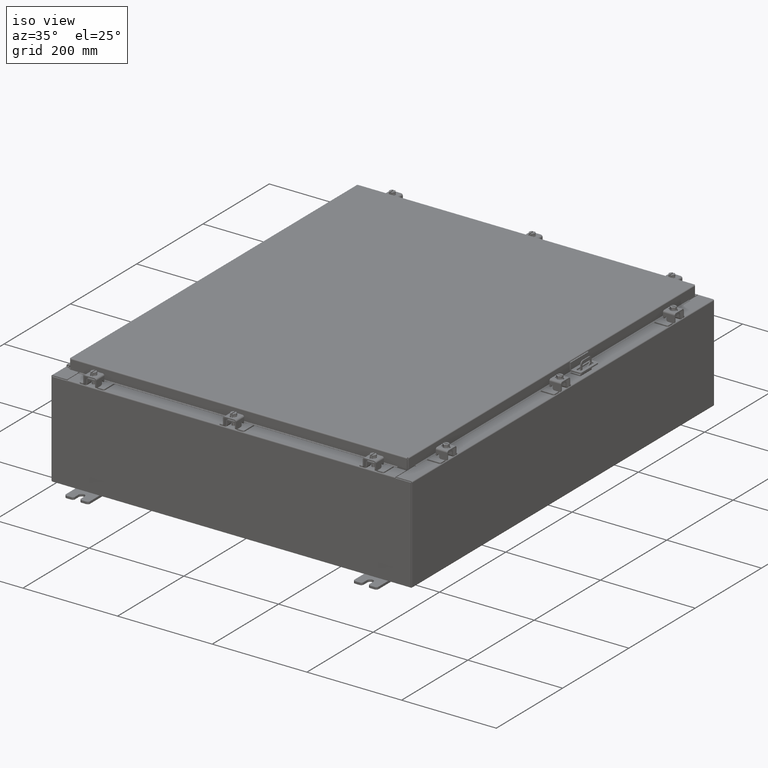
[diagram: clean part render]
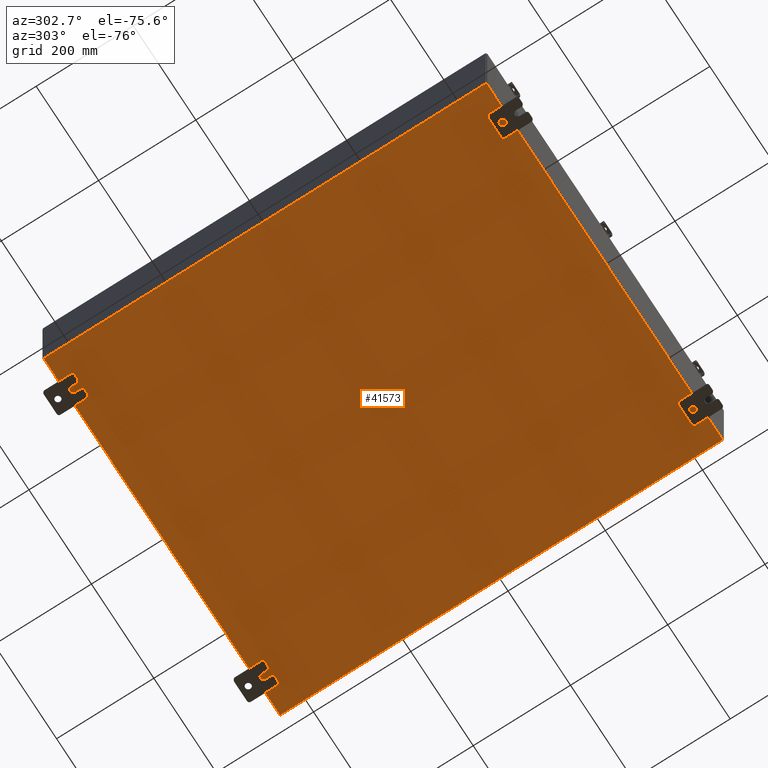
[diagram: tour spotlight — one face highlighted and labeled with its STEP entity id]
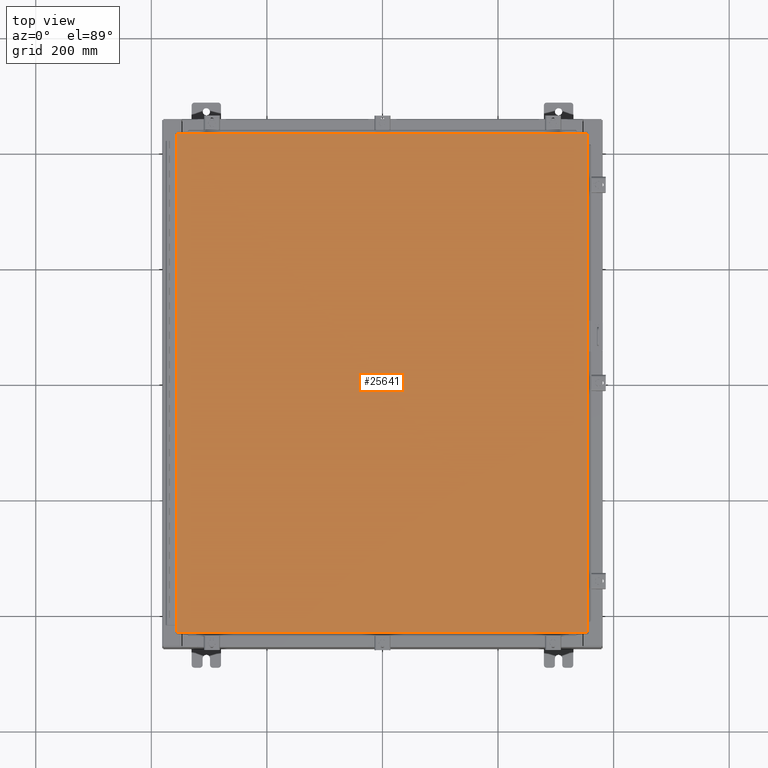
[diagram: tour spotlight — one face highlighted and labeled with its STEP entity id]
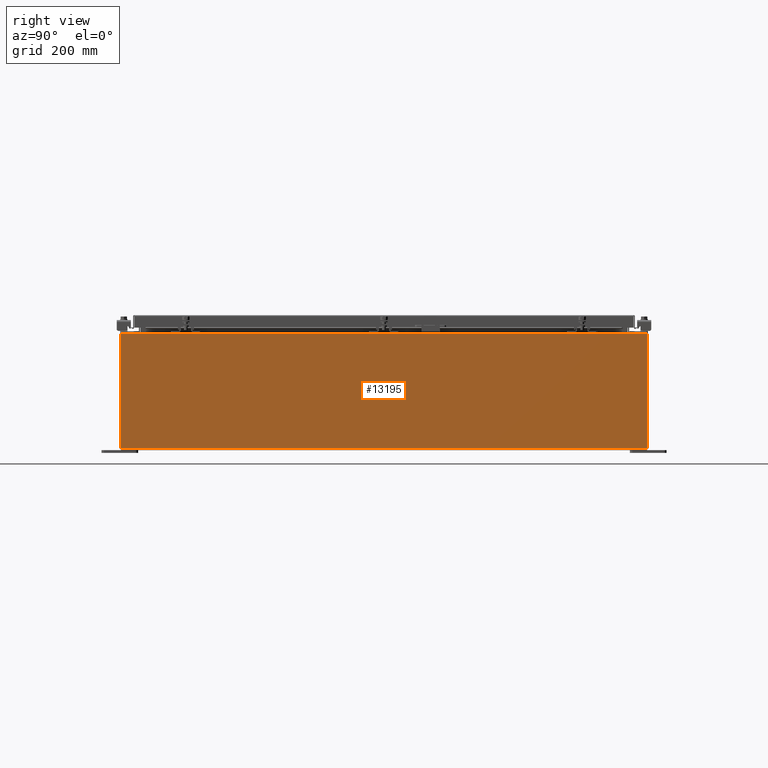
[diagram: tour spotlight — one face highlighted and labeled with its STEP entity id]
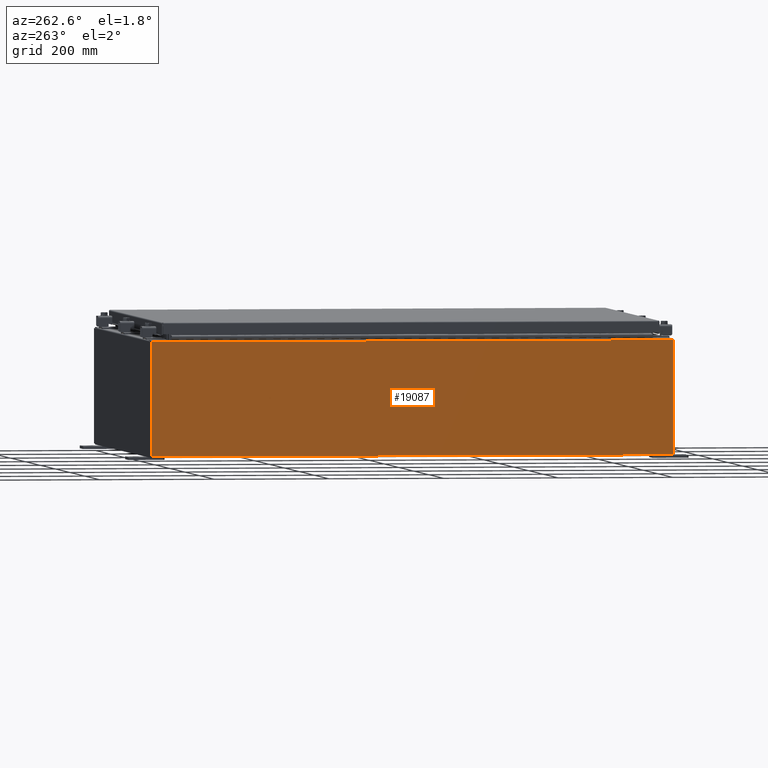
[diagram: tour spotlight — one face highlighted and labeled with its STEP entity id]
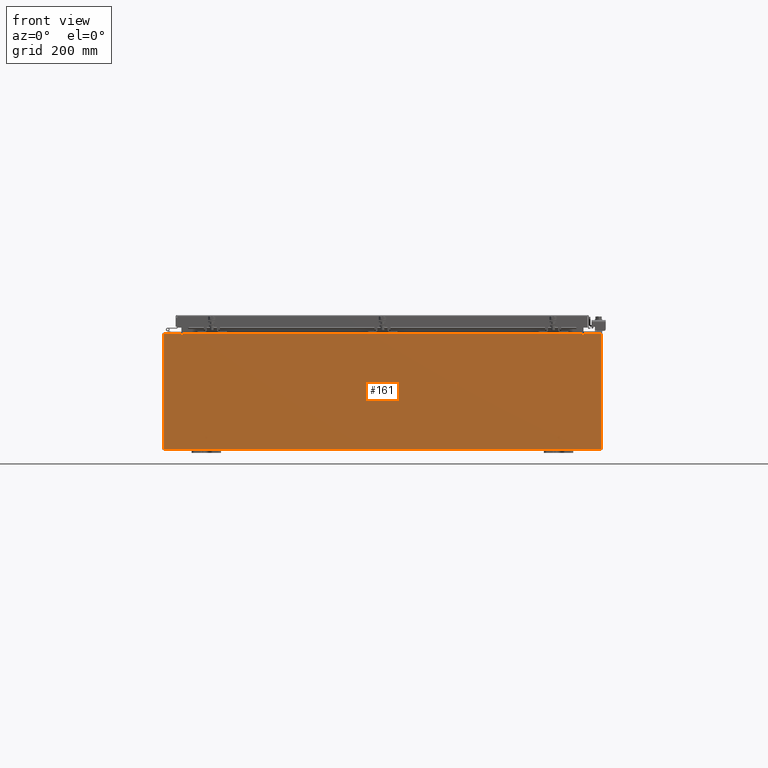
[diagram: tour spotlight — one face highlighted and labeled with its STEP entity id]
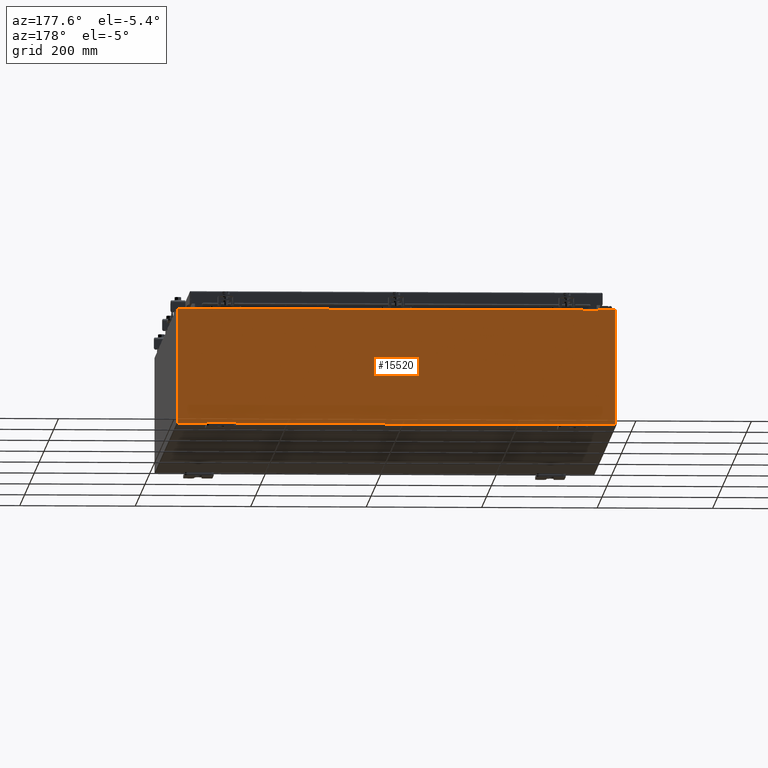
[diagram: tour spotlight — one face highlighted and labeled with its STEP entity id]
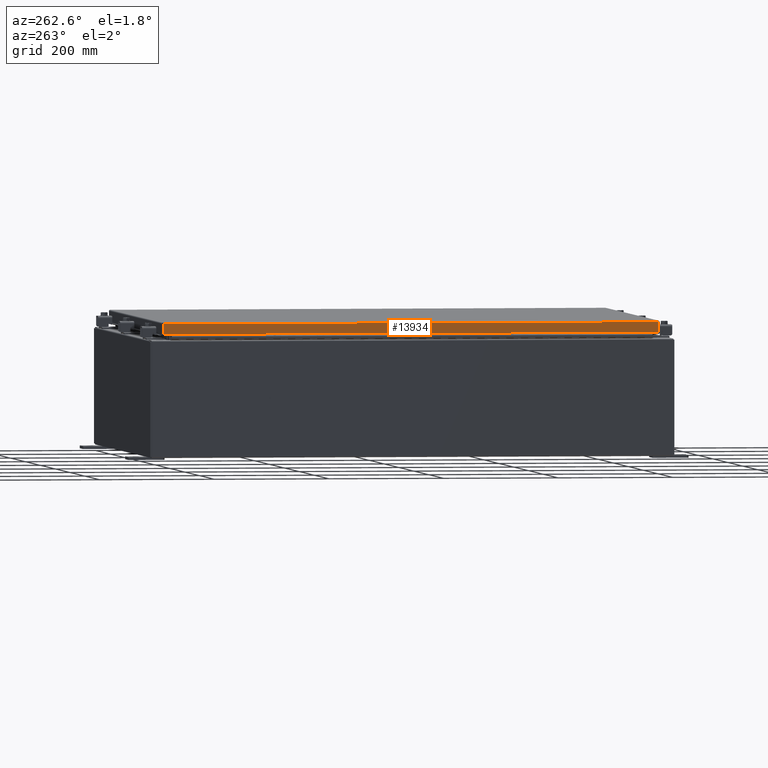
[diagram: tour spotlight — one face highlighted and labeled with its STEP entity id]
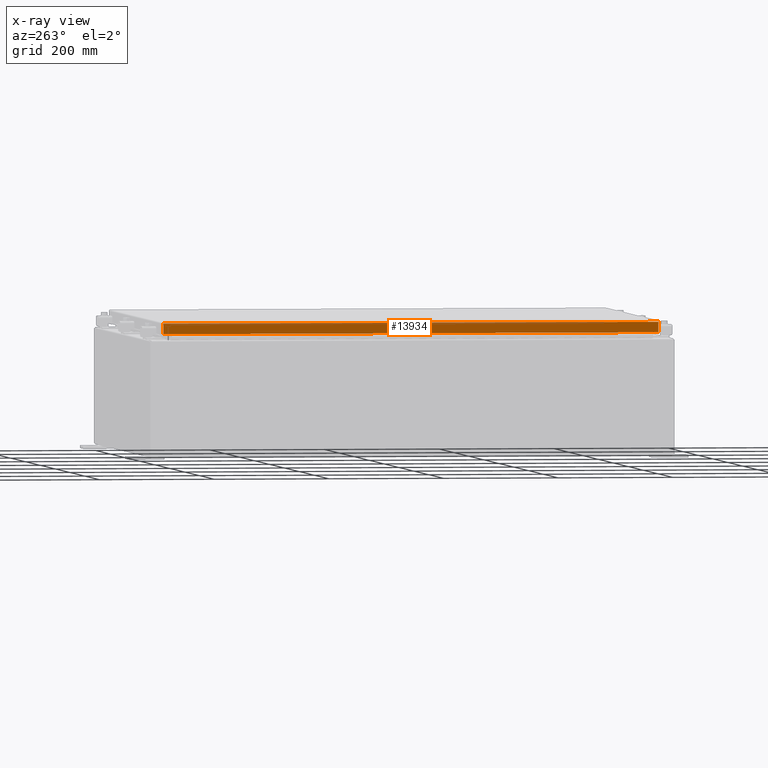
[diagram: x-ray of the same camera — body ghosted, this tour face saturated]
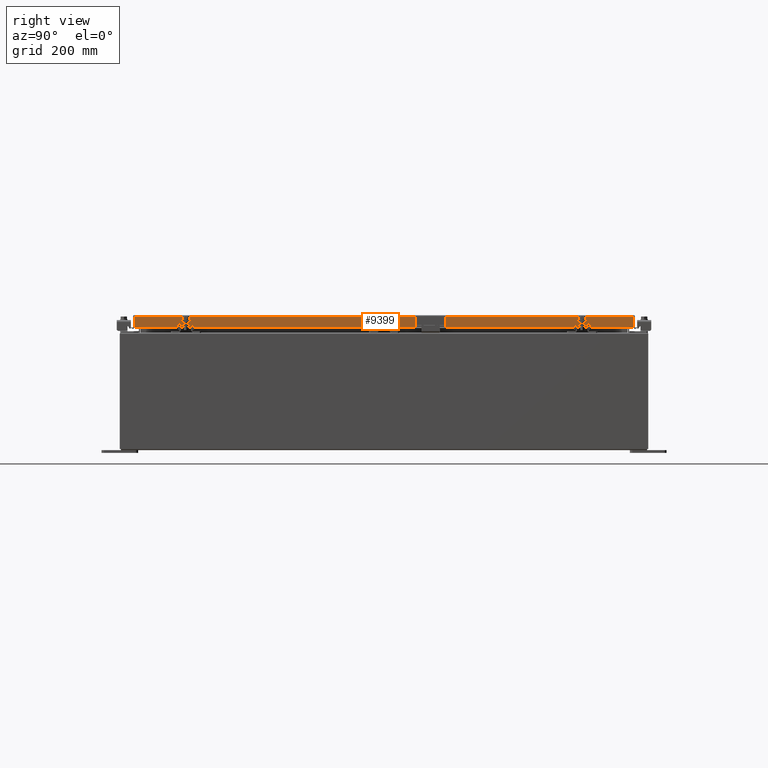
[diagram: tour spotlight — one face highlighted and labeled with its STEP entity id]
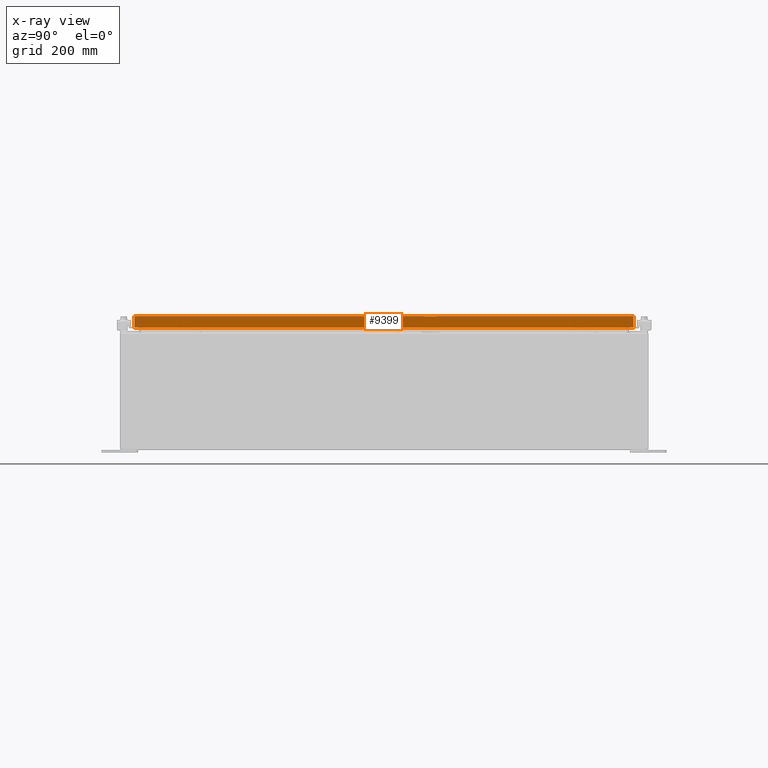
[diagram: x-ray of the same camera — body ghosted, this tour face saturated]
A machine part: a face-by-face anatomy tour. The part has 2482 B-rep faces; the first image is the clean iso view, then the 8 largest visible faces are spotlighted one at a time (largest first), each with its STEP entity span.

Face 1 — auxiliary view, entity #41573. In plain terms, the highlighted planar face has unit normal (0, 0, -1).
Definition (entity closure, byte-faithful):
#1558 = CARTESIAN_POINT ( 'NONE',  ( -15.00000000000000400, 17.92530000000000000, -0.07469999999999998900 ) ) ;
#1946 = VERTEX_POINT ( 'NONE', #27403 ) ;
#3072 = CARTESIAN_POINT ( 'NONE',  ( -14.91230000000000200, 17.92530000000000000, -0.07469999999999998900 ) ) ;
#3519 = ORIENTED_EDGE ( 'NONE', *, *, #12975, .T. ) ;
#4757 = CARTESIAN_POINT ( 'NONE',  ( 14.91229999999999800, 17.92530000000000000, -0.07470000000000251400 ) ) ;
#5370 = VERTEX_POINT ( 'NONE', #8923 ) ;
#5992 = VECTOR ( 'NONE', #33147, 39.37007874015748100 ) ;
#6813 = DIRECTION ( 'NONE',  ( 0.0000000000000000000, 0.0000000000000000000, -1.000000000000000000 ) ) ;
#6951 = ORIENTED_EDGE ( 'NONE', *, *, #41744, .F. ) ;
#7314 = DIRECTION ( 'NONE',  ( -0.0000000000000000000, -1.000000000000000000, 8.208677865577646300E-017 ) ) ;
#8923 = CARTESIAN_POINT ( 'NONE',  ( 14.91229999999999800, -17.92530000000000000, -0.07469999999999998900 ) ) ;
#9377 = ORIENTED_EDGE ( 'NONE', *, *, #19509, .F. ) ;
#9492 = CARTESIAN_POINT ( 'NONE',  ( -14.91230000000000200, -17.92530000000000000, -0.07469999999999996100 ) ) ;
#10076 = PLANE ( 'NONE',  #17456 ) ;
#11734 = DIRECTION ( 'NONE',  ( -1.000000000000000000, -0.0000000000000000000, -0.0000000000000000000 ) ) ;
#12685 = LINE ( 'NONE', #1558, #21281 ) ;
#12975 = EDGE_CURVE ( 'NONE', #1946, #27853, #24037, .T. ) ;
#14136 = CARTESIAN_POINT ( 'NONE',  ( 14.91229999999999800, 17.92530000000000000, -0.07470000000000251400 ) ) ;
#14352 = CARTESIAN_POINT ( 'NONE',  ( -15.00000000000000400, -17.92530000000000000, -0.07469999999999998900 ) ) ;
#17456 = AXIS2_PLACEMENT_3D ( 'NONE', #20315, #6813, #30467 ) ;
#19509 = EDGE_CURVE ( 'NONE', #33013, #27853, #12685, .T. ) ;
#20315 = CARTESIAN_POINT ( 'NONE',  ( 0.0000000000000000000, 0.0000000000000000000, -0.07469999999999998900 ) ) ;
#21281 = VECTOR ( 'NONE', #11734, 39.37007874015748100 ) ;
#24037 = LINE ( 'NONE', #9492, #5992 ) ;
#26003 = VECTOR ( 'NONE', #7314, 39.37007874015748100 ) ;
#27403 = CARTESIAN_POINT ( 'NONE',  ( -14.91230000000000200, -17.92530000000000000, -0.07469999999999996100 ) ) ;
#27853 = VERTEX_POINT ( 'NONE', #3072 ) ;
#27946 = DIRECTION ( 'NONE',  ( 1.000000000000000000, 0.0000000000000000000, 0.0000000000000000000 ) ) ;
#30047 = EDGE_CURVE ( 'NONE', #33013, #5370, #37099, .T. ) ;
#30250 = FACE_OUTER_BOUND ( 'NONE', #36072, .T. ) ;
#30467 = DIRECTION ( 'NONE',  ( -1.000000000000000000, 0.0000000000000000000, -0.0000000000000000000 ) ) ;
#32850 = VECTOR ( 'NONE', #27946, 39.37007874015748100 ) ;
#33013 = VERTEX_POINT ( 'NONE', #4757 ) ;
#33147 = DIRECTION ( 'NONE',  ( -0.0000000000000000000, 1.000000000000000000, -0.0000000000000000000 ) ) ;
#36072 = EDGE_LOOP ( 'NONE', ( #6951, #3519, #9377, #37981 ) ) ;
#37099 = LINE ( 'NONE', #14136, #26003 ) ;
#37981 = ORIENTED_EDGE ( 'NONE', *, *, #30047, .T. ) ;
#41573 = ADVANCED_FACE ( 'NONE', ( #30250 ), #10076, .T. ) ;
#41744 = EDGE_CURVE ( 'NONE', #1946, #5370, #42867, .T. ) ;
#42867 = LINE ( 'NONE', #14352, #32850 ) ;

Face 2 — top view, entity #25641. In plain terms, the highlighted planar face has unit normal (0, 0, -1).
Definition (entity closure, byte-faithful):
#120 = CARTESIAN_POINT ( 'NONE',  ( 13.99029999999999200, -17.00630000000000000, 0.0000000000000000000 ) ) ;
#190 = CARTESIAN_POINT ( 'NONE',  ( 13.99029999999999200, -17.00630000000000000, 0.0000000000000000000 ) ) ;
#953 = EDGE_LOOP ( 'NONE', ( #33686, #8342, #34039, #15385 ) ) ;
#1912 = EDGE_CURVE ( 'NONE', #29605, #11529, #9495, .T. ) ;
#2059 = VECTOR ( 'NONE', #27207, 39.37007874015748100 ) ;
#3304 = DIRECTION ( 'NONE',  ( 0.0000000000000000000, -1.000000000000000000, 0.0000000000000000000 ) ) ;
#8342 = ORIENTED_EDGE ( 'NONE', *, *, #24426, .T. ) ;
#8872 = VERTEX_POINT ( 'NONE', #27887 ) ;
#9338 = FACE_OUTER_BOUND ( 'NONE', #953, .T. ) ;
#9495 = LINE ( 'NONE', #13674, #18539 ) ;
#10206 = EDGE_CURVE ( 'NONE', #15777, #29605, #15939, .T. ) ;
#11529 = VERTEX_POINT ( 'NONE', #120 ) ;
#13361 = PLANE ( 'NONE',  #43499 ) ;
#13674 = CARTESIAN_POINT ( 'NONE',  ( -13.99030000000000700, -17.00630000000000000, 0.0000000000000000000 ) ) ;
#13844 = VECTOR ( 'NONE', #3304, 39.37007874015748100 ) ;
#15385 = ORIENTED_EDGE ( 'NONE', *, *, #10206, .T. ) ;
#15777 = VERTEX_POINT ( 'NONE', #39285 ) ;
#15939 = LINE ( 'NONE', #20185, #13844 ) ;
#15982 = CARTESIAN_POINT ( 'NONE',  ( 0.0000000000000000000, 0.0000000000000000000, 0.0000000000000000000 ) ) ;
#16369 = EDGE_CURVE ( 'NONE', #8872, #15777, #16611, .T. ) ;
#16611 = LINE ( 'NONE', #39233, #42444 ) ;
#17910 = DIRECTION ( 'NONE',  ( -1.000000000000000000, 0.0000000000000000000, -0.0000000000000000000 ) ) ;
#18539 = VECTOR ( 'NONE', #30500, 39.37007874015748100 ) ;
#20094 = LINE ( 'NONE', #190, #2059 ) ;
#20185 = CARTESIAN_POINT ( 'NONE',  ( -13.99030000000000700, 17.00630000000000000, 0.0000000000000000000 ) ) ;
#21145 = CARTESIAN_POINT ( 'NONE',  ( -13.99030000000000700, -17.00630000000000000, 0.0000000000000000000 ) ) ;
#24426 = EDGE_CURVE ( 'NONE', #11529, #8872, #20094, .T. ) ;
#25641 = ADVANCED_FACE ( 'NONE', ( #9338 ), #13361, .F. ) ;
#27207 = DIRECTION ( 'NONE',  ( 0.0000000000000000000, 1.000000000000000000, 0.0000000000000000000 ) ) ;
#27887 = CARTESIAN_POINT ( 'NONE',  ( 13.99029999999999200, 17.00630000000000300, -1.092739197465705300E-015 ) ) ;
#29605 = VERTEX_POINT ( 'NONE', #21145 ) ;
#30500 = DIRECTION ( 'NONE',  ( 1.000000000000000000, -0.0000000000000000000, -0.0000000000000000000 ) ) ;
#33686 = ORIENTED_EDGE ( 'NONE', *, *, #1912, .T. ) ;
#34039 = ORIENTED_EDGE ( 'NONE', *, *, #16369, .T. ) ;
#38094 = DIRECTION ( 'NONE',  ( 0.0000000000000000000, 0.0000000000000000000, -1.000000000000000000 ) ) ;
#39233 = CARTESIAN_POINT ( 'NONE',  ( 13.99029999999999200, 17.00630000000000300, -1.092739197465705300E-015 ) ) ;
#39285 = CARTESIAN_POINT ( 'NONE',  ( -13.99030000000000700, 17.00630000000000000, 0.0000000000000000000 ) ) ;
#42444 = VECTOR ( 'NONE', #42630, 39.37007874015748100 ) ;
#42630 = DIRECTION ( 'NONE',  ( -1.000000000000000000, -0.0000000000000000000, -0.0000000000000000000 ) ) ;
#43499 = AXIS2_PLACEMENT_3D ( 'NONE', #15982, #38094, #17910 ) ;

Face 3 — right view, entity #13195. In plain terms, the highlighted planar face has unit normal (-1, 0, 0).
Definition (entity closure, byte-faithful):
#529 = DIRECTION ( 'NONE',  ( 3.584876173029202900E-015, 0.0000000000000000000, 1.000000000000000000 ) ) ;
#743 = VECTOR ( 'NONE', #26961, 39.37007874015748100 ) ;
#2378 = CARTESIAN_POINT ( 'NONE',  ( 14.99999999999999800, 17.92530000000000000, -5.403936812467120800E-014 ) ) ;
#3004 = ORIENTED_EDGE ( 'NONE', *, *, #31262, .F. ) ;
#5049 = CARTESIAN_POINT ( 'NONE',  ( 14.99999999999999800, -17.92530000000000000, 0.01300000000000021800 ) ) ;
#5897 = VERTEX_POINT ( 'NONE', #5049 ) ;
#6434 = EDGE_LOOP ( 'NONE', ( #31422, #33252, #3004, #22290 ) ) ;
#6480 = VERTEX_POINT ( 'NONE', #31880 ) ;
#10787 = LINE ( 'NONE', #30342, #743 ) ;
#10912 = LINE ( 'NONE', #2378, #19923 ) ;
#11653 = CARTESIAN_POINT ( 'NONE',  ( 14.99999999999999800, -17.92530000000000000, -5.403936812467120800E-014 ) ) ;
#13095 = EDGE_CURVE ( 'NONE', #43460, #6480, #10787, .T. ) ;
#13195 = ADVANCED_FACE ( 'NONE', ( #24531 ), #17386, .F. ) ;
#17386 = PLANE ( 'NONE',  #42886 ) ;
#17445 = CARTESIAN_POINT ( 'NONE',  ( 14.99999999999999800, -17.92530000000000000, 0.01299999999999985200 ) ) ;
#19105 = LINE ( 'NONE', #17445, #20199 ) ;
#19923 = VECTOR ( 'NONE', #22660, 39.37007874015748100 ) ;
#20199 = VECTOR ( 'NONE', #34385, 39.37007874015748100 ) ;
#20790 = DIRECTION ( 'NONE',  ( -1.000000000000000000, 0.0000000000000000000, 3.584876173029202900E-015 ) ) ;
#22290 = ORIENTED_EDGE ( 'NONE', *, *, #34768, .T. ) ;
#22660 = DIRECTION ( 'NONE',  ( 3.584876173029202900E-015, 0.0000000000000000000, 1.000000000000000000 ) ) ;
#23092 = VERTEX_POINT ( 'NONE', #39376 ) ;
#24531 = FACE_OUTER_BOUND ( 'NONE', #6434, .T. ) ;
#25259 = DIRECTION ( 'NONE',  ( -3.584876173029202900E-015, 0.0000000000000000000, -1.000000000000000000 ) ) ;
#26961 = DIRECTION ( 'NONE',  ( -0.0000000000000000000, -1.000000000000000000, -0.0000000000000000000 ) ) ;
#29673 = LINE ( 'NONE', #11653, #38642 ) ;
#30342 = CARTESIAN_POINT ( 'NONE',  ( 15.00000000000002700, 17.92530000000000000, 7.837599999999992100 ) ) ;
#30790 = CARTESIAN_POINT ( 'NONE',  ( 14.99999999999999800, 0.0000000000000000000, -5.403936812467120800E-014 ) ) ;
#31262 = EDGE_CURVE ( 'NONE', #23092, #5897, #19105, .T. ) ;
#31422 = ORIENTED_EDGE ( 'NONE', *, *, #13095, .T. ) ;
#31880 = CARTESIAN_POINT ( 'NONE',  ( 15.00000000000002700, -17.92530000000000000, 7.837599999999998300 ) ) ;
#33252 = ORIENTED_EDGE ( 'NONE', *, *, #41850, .T. ) ;
#34385 = DIRECTION ( 'NONE',  ( 2.185366332686126200E-031, -1.000000000000000000, 6.096072018129156600E-017 ) ) ;
#34768 = EDGE_CURVE ( 'NONE', #23092, #43460, #10912, .T. ) ;
#38642 = VECTOR ( 'NONE', #25259, 39.37007874015748100 ) ;
#39376 = CARTESIAN_POINT ( 'NONE',  ( 14.99999999999999800, 17.92530000000000000, 0.01299999999999766600 ) ) ;
#41850 = EDGE_CURVE ( 'NONE', #6480, #5897, #29673, .T. ) ;
#42886 = AXIS2_PLACEMENT_3D ( 'NONE', #30790, #20790, #529 ) ;
#43460 = VERTEX_POINT ( 'NONE', #43782 ) ;
#43782 = CARTESIAN_POINT ( 'NONE',  ( 15.00000000000002700, 17.92530000000000000, 7.837599999999992100 ) ) ;

Face 4 — auxiliary view, entity #19087. In plain terms, the highlighted planar face has unit normal (1, 0, 0).
Definition (entity closure, byte-faithful):
#2 = CARTESIAN_POINT ( 'NONE',  ( -15.00000000000003200, -17.92530000000000000, 7.837599999999999200 ) ) ;
#3404 = CARTESIAN_POINT ( 'NONE',  ( -15.00000000000000400, -17.92530000000000000, 0.01299999999999985200 ) ) ;
#5690 = DIRECTION ( 'NONE',  ( 3.584876173029202900E-015, 0.0000000000000000000, -1.000000000000000000 ) ) ;
#7058 = EDGE_CURVE ( 'NONE', #10880, #25159, #41527, .T. ) ;
#9209 = CARTESIAN_POINT ( 'NONE',  ( -15.00000000000000400, 17.92530000000000000, -5.403936812467120800E-014 ) ) ;
#10880 = VERTEX_POINT ( 'NONE', #3404 ) ;
#10891 = CARTESIAN_POINT ( 'NONE',  ( -15.00000000000000400, 17.92530000000000000, 0.01299999999999983500 ) ) ;
#13587 = LINE ( 'NONE', #2, #32562 ) ;
#13990 = CARTESIAN_POINT ( 'NONE',  ( -15.00000000000000400, -17.92530000000000000, -5.403936812467120800E-014 ) ) ;
#17413 = DIRECTION ( 'NONE',  ( -3.584876173029202900E-015, 0.0000000000000000000, 1.000000000000000000 ) ) ;
#19087 = ADVANCED_FACE ( 'NONE', ( #35434 ), #32902, .F. ) ;
#19501 = CARTESIAN_POINT ( 'NONE',  ( -15.00000000000000400, 0.0000000000000000000, -5.403936812467120800E-014 ) ) ;
#19611 = ORIENTED_EDGE ( 'NONE', *, *, #25968, .T. ) ;
#19983 = VECTOR ( 'NONE', #17413, 39.37007874015748100 ) ;
#21909 = ORIENTED_EDGE ( 'NONE', *, *, #35883, .T. ) ;
#22912 = DIRECTION ( 'NONE',  ( 3.584876173029202900E-015, 0.0000000000000000000, -1.000000000000000000 ) ) ;
#23639 = DIRECTION ( 'NONE',  ( 0.0000000000000000000, 1.000000000000000000, 0.0000000000000000000 ) ) ;
#25159 = VERTEX_POINT ( 'NONE', #10891 ) ;
#25236 = ORIENTED_EDGE ( 'NONE', *, *, #7058, .F. ) ;
#25968 = EDGE_CURVE ( 'NONE', #30203, #34621, #13587, .T. ) ;
#27126 = AXIS2_PLACEMENT_3D ( 'NONE', #19501, #43076, #22912 ) ;
#29991 = LINE ( 'NONE', #13990, #19983 ) ;
#30203 = VERTEX_POINT ( 'NONE', #41831 ) ;
#30366 = LINE ( 'NONE', #9209, #39308 ) ;
#31973 = CARTESIAN_POINT ( 'NONE',  ( -15.00000000000000400, 17.92530000000000000, 0.01299999999999985200 ) ) ;
#32534 = VECTOR ( 'NONE', #35384, 39.37007874015748100 ) ;
#32562 = VECTOR ( 'NONE', #23639, 39.37007874015748100 ) ;
#32902 = PLANE ( 'NONE',  #27126 ) ;
#34621 = VERTEX_POINT ( 'NONE', #38567 ) ;
#35384 = DIRECTION ( 'NONE',  ( -0.0000000000000000000, 1.000000000000000000, -0.0000000000000000000 ) ) ;
#35434 = FACE_OUTER_BOUND ( 'NONE', #43042, .T. ) ;
#35883 = EDGE_CURVE ( 'NONE', #34621, #25159, #30366, .T. ) ;
#38567 = CARTESIAN_POINT ( 'NONE',  ( -15.00000000000003200, 17.92530000000000000, 7.837599999999999200 ) ) ;
#39308 = VECTOR ( 'NONE', #5690, 39.37007874015748100 ) ;
#41013 = EDGE_CURVE ( 'NONE', #10880, #30203, #29991, .T. ) ;
#41527 = LINE ( 'NONE', #31973, #32534 ) ;
#41831 = CARTESIAN_POINT ( 'NONE',  ( -15.00000000000003200, -17.92530000000000000, 7.837599999999999200 ) ) ;
#43042 = EDGE_LOOP ( 'NONE', ( #19611, #21909, #25236, #43613 ) ) ;
#43076 = DIRECTION ( 'NONE',  ( 1.000000000000000000, 0.0000000000000000000, 3.584876173029202900E-015 ) ) ;
#43613 = ORIENTED_EDGE ( 'NONE', *, *, #41013, .T. ) ;

Face 5 — front view, entity #161. In plain terms, the highlighted planar face has unit normal (0, 1, -0).
Definition (entity closure, byte-faithful):
#72 = CARTESIAN_POINT ( 'NONE',  ( -13.63719999999999600, 0.0000000000000000000, 3.912299999999987200 ) ) ;
#83 = VERTEX_POINT ( 'NONE', #37114 ) ;
#134 = CIRCLE ( 'NONE', #41147, 0.01867499999999949400 ) ;
#161 = ADVANCED_FACE ( 'NONE', ( #5453 ), #364, .F. ) ;
#364 = PLANE ( 'NONE',  #40140 ) ;
#1116 = VERTEX_POINT ( 'NONE', #24591 ) ;
#1216 = EDGE_CURVE ( 'NONE', #19953, #27819, #10129, .T. ) ;
#2661 = CARTESIAN_POINT ( 'NONE',  ( -13.63719999999999600, 0.0000000000000000000, 3.874949999999985900 ) ) ;
#2694 = LINE ( 'NONE', #26972, #18580 ) ;
#3062 = ORIENTED_EDGE ( 'NONE', *, *, #6458, .T. ) ;
#3078 = VECTOR ( 'NONE', #8070, 39.37007874015748100 ) ;
#4675 = CARTESIAN_POINT ( 'NONE',  ( 13.63720000000000400, 0.0000000000000000000, 9.834652777191348400E-015 ) ) ;
#4821 = CARTESIAN_POINT ( 'NONE',  ( 14.92530000000000200, 0.0000000000000000000, 3.925300000000013300 ) ) ;
#5453 = FACE_OUTER_BOUND ( 'NONE', #5654, .T. ) ;
#5606 = VERTEX_POINT ( 'NONE', #27120 ) ;
#5654 = EDGE_LOOP ( 'NONE', ( #12935, #30294, #36282, #3062, #11796, #19101, #33591, #40566, #24246, #20991, #29046, #40306 ) ) ;
#5850 = CARTESIAN_POINT ( 'NONE',  ( 13.67455000000000400, 0.0000000000000000000, 3.925300000000013300 ) ) ;
#5879 = LINE ( 'NONE', #13398, #14888 ) ;
#6179 = VECTOR ( 'NONE', #38228, 39.37007874015748100 ) ;
#6458 = EDGE_CURVE ( 'NONE', #14580, #41020, #11987, .T. ) ;
#7306 = CARTESIAN_POINT ( 'NONE',  ( 13.67455000000000200, 0.0000000000000000000, 3.874950000000012100 ) ) ;
#8070 = DIRECTION ( 'NONE',  ( 9.992007221626408900E-016, -2.013110121372521300E-016, 1.000000000000000000 ) ) ;
#10129 = CIRCLE ( 'NONE', #32223, 0.01867499999999949400 ) ;
#10140 = EDGE_CURVE ( 'NONE', #11164, #20437, #33914, .T. ) ;
#11164 = VERTEX_POINT ( 'NONE', #4821 ) ;
#11198 = VECTOR ( 'NONE', #43442, 39.37007874015748100 ) ;
#11739 = LINE ( 'NONE', #20917, #19714 ) ;
#11796 = ORIENTED_EDGE ( 'NONE', *, *, #40522, .F. ) ;
#11987 = LINE ( 'NONE', #18359, #36843 ) ;
#12606 = CARTESIAN_POINT ( 'NONE',  ( -13.63719999999999600, 0.0000000000000000000, -1.311287036958846300E-014 ) ) ;
#12935 = ORIENTED_EDGE ( 'NONE', *, *, #38366, .F. ) ;
#13398 = CARTESIAN_POINT ( 'NONE',  ( -13.67454999999999500, 0.0000000000000000000, -1.639108796198557900E-014 ) ) ;
#13936 = DIRECTION ( 'NONE',  ( -3.225867722578236700E-016, -1.000000000000000000, -2.013110121372518100E-016 ) ) ;
#14349 = VECTOR ( 'NONE', #42978, 39.37007874015748100 ) ;
#14580 = VERTEX_POINT ( 'NONE', #72 ) ;
#14639 = CARTESIAN_POINT ( 'NONE',  ( -13.65587499999999600, 0.0000000000000000000, 3.874949999999985900 ) ) ;
#14800 = CARTESIAN_POINT ( 'NONE',  ( 13.65587500000000200, 0.0000000000000000000, 3.874950000000012100 ) ) ;
#14888 = VECTOR ( 'NONE', #16839, 39.37007874015748100 ) ;
#16839 = DIRECTION ( 'NONE',  ( 9.992007221626408900E-016, -2.013110121372521300E-016, 1.000000000000000000 ) ) ;
#17508 = DIRECTION ( 'NONE',  ( 9.992007221626408900E-016, -2.013110121372521300E-016, 1.000000000000000000 ) ) ;
#18058 = DIRECTION ( 'NONE',  ( 0.0000000000000000000, 2.013110121372521000E-016, -1.000000000000000000 ) ) ;
#18161 = EDGE_CURVE ( 'NONE', #5606, #83, #11739, .T. ) ;
#18237 = DIRECTION ( 'NONE',  ( 0.0000000000000000000, 2.013110121372521000E-016, -1.000000000000000000 ) ) ;
#18359 = CARTESIAN_POINT ( 'NONE',  ( -13.63719999999999800, 0.0000000000000000000, 3.912299999999987200 ) ) ;
#18580 = VECTOR ( 'NONE', #30354, 39.37007874015748100 ) ;
#19101 = ORIENTED_EDGE ( 'NONE', *, *, #1216, .F. ) ;
#19287 = DIRECTION ( 'NONE',  ( -9.992007221626408900E-016, 2.013110121372521300E-016, -1.000000000000000000 ) ) ;
#19408 = CARTESIAN_POINT ( 'NONE',  ( -14.92529999999999800, 0.0000000000000000000, 3.925299999999984900 ) ) ;
#19714 = VECTOR ( 'NONE', #17508, 39.37007874015748100 ) ;
#19841 = EDGE_CURVE ( 'NONE', #83, #1116, #2694, .T. ) ;
#19875 = CARTESIAN_POINT ( 'NONE',  ( 14.92530000000000200, 0.0000000000000000000, 3.925300000000013300 ) ) ;
#19953 = VERTEX_POINT ( 'NONE', #7306 ) ;
#20437 = VERTEX_POINT ( 'NONE', #29315 ) ;
#20917 = CARTESIAN_POINT ( 'NONE',  ( -14.92529999999999800, 0.0000000000000000000, 3.925299999999984900 ) ) ;
#20991 = ORIENTED_EDGE ( 'NONE', *, *, #25708, .T. ) ;
#22893 = CARTESIAN_POINT ( 'NONE',  ( 13.63720000000000400, 0.0000000000000000000, 3.874950000000012100 ) ) ;
#23694 = VECTOR ( 'NONE', #19287, 39.37007874015748100 ) ;
#24246 = ORIENTED_EDGE ( 'NONE', *, *, #10140, .T. ) ;
#24591 = CARTESIAN_POINT ( 'NONE',  ( -13.67454999999999500, 0.0000000000000000000, 3.925299999999987100 ) ) ;
#24822 = CARTESIAN_POINT ( 'NONE',  ( -14.92529999999999800, 0.0000000000000000000, -3.925300000000016000 ) ) ;
#24870 = VERTEX_POINT ( 'NONE', #5850 ) ;
#25466 = VECTOR ( 'NONE', #30080, 39.37007874015748100 ) ;
#25477 = EDGE_CURVE ( 'NONE', #14580, #27147, #25778, .T. ) ;
#25708 = EDGE_CURVE ( 'NONE', #20437, #5606, #33132, .T. ) ;
#25778 = LINE ( 'NONE', #12606, #23694 ) ;
#26683 = CARTESIAN_POINT ( 'NONE',  ( 13.67454999999983300, 0.0000000000000000000, -5.802445138542894800E-013 ) ) ;
#26972 = CARTESIAN_POINT ( 'NONE',  ( -14.92529999999999800, 0.0000000000000000000, 3.925299999999984900 ) ) ;
#27120 = CARTESIAN_POINT ( 'NONE',  ( -14.92529999999999800, 0.0000000000000000000, -3.925300000000016000 ) ) ;
#27147 = VERTEX_POINT ( 'NONE', #2661 ) ;
#27819 = VERTEX_POINT ( 'NONE', #22893 ) ;
#29046 = ORIENTED_EDGE ( 'NONE', *, *, #18161, .T. ) ;
#29315 = CARTESIAN_POINT ( 'NONE',  ( 14.92530000000000200, 0.0000000000000000000, -3.925299999999983600 ) ) ;
#29860 = EDGE_CURVE ( 'NONE', #24870, #19953, #43417, .T. ) ;
#30041 = LINE ( 'NONE', #4675, #3078 ) ;
#30080 = DIRECTION ( 'NONE',  ( -4.440492852616269000E-014, 2.013110121372381000E-016, -1.000000000000000000 ) ) ;
#30294 = ORIENTED_EDGE ( 'NONE', *, *, #30817, .F. ) ;
#30354 = DIRECTION ( 'NONE',  ( 1.000000000000000000, 3.225867722578232700E-016, 9.992007221626408900E-016 ) ) ;
#30402 = EDGE_CURVE ( 'NONE', #24870, #11164, #40221, .T. ) ;
#30768 = CARTESIAN_POINT ( 'NONE',  ( 0.0000000000000000000, 0.0000000000000000000, 0.0000000000000000000 ) ) ;
#30817 = EDGE_CURVE ( 'NONE', #27147, #35059, #134, .T. ) ;
#32223 = AXIS2_PLACEMENT_3D ( 'NONE', #14800, #38425, #18237 ) ;
#33132 = LINE ( 'NONE', #24822, #6179 ) ;
#33591 = ORIENTED_EDGE ( 'NONE', *, *, #29860, .F. ) ;
#33914 = LINE ( 'NONE', #19875, #11198 ) ;
#35059 = VERTEX_POINT ( 'NONE', #41075 ) ;
#36282 = ORIENTED_EDGE ( 'NONE', *, *, #25477, .F. ) ;
#36843 = VECTOR ( 'NONE', #38536, 39.37007874015748100 ) ;
#37114 = CARTESIAN_POINT ( 'NONE',  ( -14.92529999999999800, 0.0000000000000000000, 3.925299999999984900 ) ) ;
#37560 = DIRECTION ( 'NONE',  ( -9.992007221626408900E-016, 2.013110121372521300E-016, -1.000000000000000000 ) ) ;
#38228 = DIRECTION ( 'NONE',  ( -1.000000000000000000, -3.225867722578232700E-016, -9.992007221626408900E-016 ) ) ;
#38255 = DIRECTION ( 'NONE',  ( 3.225867722578232700E-016, 1.000000000000000000, -2.013110121372520500E-016 ) ) ;
#38366 = EDGE_CURVE ( 'NONE', #35059, #1116, #5879, .T. ) ;
#38425 = DIRECTION ( 'NONE',  ( 3.225867722578232700E-016, 1.000000000000000000, -2.013110121372520500E-016 ) ) ;
#38536 = DIRECTION ( 'NONE',  ( 1.000000000000000000, 3.225867722578232700E-016, 9.992007221626408900E-016 ) ) ;
#40140 = AXIS2_PLACEMENT_3D ( 'NONE', #30768, #13936, #37560 ) ;
#40221 = LINE ( 'NONE', #19408, #14349 ) ;
#40306 = ORIENTED_EDGE ( 'NONE', *, *, #19841, .T. ) ;
#40522 = EDGE_CURVE ( 'NONE', #27819, #41020, #30041, .T. ) ;
#40566 = ORIENTED_EDGE ( 'NONE', *, *, #30402, .T. ) ;
#40989 = CARTESIAN_POINT ( 'NONE',  ( 13.63720000000000400, 0.0000000000000000000, 3.912300000000013400 ) ) ;
#41020 = VERTEX_POINT ( 'NONE', #40989 ) ;
#41075 = CARTESIAN_POINT ( 'NONE',  ( -13.67454999999999500, 0.0000000000000000000, 3.874949999999985900 ) ) ;
#41147 = AXIS2_PLACEMENT_3D ( 'NONE', #14639, #38255, #18058 ) ;
#42978 = DIRECTION ( 'NONE',  ( 1.000000000000000000, 3.225867722578232700E-016, 9.992007221626408900E-016 ) ) ;
#43417 = LINE ( 'NONE', #26683, #25466 ) ;
#43442 = DIRECTION ( 'NONE',  ( -9.992007221626408900E-016, 2.013110121372521300E-016, -1.000000000000000000 ) ) ;

Face 6 — auxiliary view, entity #15520. In plain terms, the highlighted planar face has unit normal (0, -1, 0).
Definition (entity closure, byte-faithful):
#319 = DIRECTION ( 'NONE',  ( -0.0000000000000000000, -0.0000000000000000000, 1.000000000000000000 ) ) ;
#567 = EDGE_CURVE ( 'NONE', #2483, #7134, #17642, .T. ) ;
#1319 = LINE ( 'NONE', #7702, #36170 ) ;
#1586 = LINE ( 'NONE', #39191, #10607 ) ;
#1852 = DIRECTION ( 'NONE',  ( 0.0000000000000000000, -1.000000000000000000, 0.0000000000000000000 ) ) ;
#2014 = ORIENTED_EDGE ( 'NONE', *, *, #15004, .T. ) ;
#2380 = CARTESIAN_POINT ( 'NONE',  ( -13.67454999999999500, 0.0000000000000000000, 3.874949999999999700 ) ) ;
#2483 = VERTEX_POINT ( 'NONE', #3120 ) ;
#2647 = LINE ( 'NONE', #10265, #36463 ) ;
#2660 = DIRECTION ( 'NONE',  ( 0.0000000000000000000, 0.0000000000000000000, -1.000000000000000000 ) ) ;
#3120 = CARTESIAN_POINT ( 'NONE',  ( 13.63720000000000400, 0.0000000000000000000, 3.874949999999999700 ) ) ;
#4784 = VECTOR ( 'NONE', #22540, 39.37007874015748100 ) ;
#5029 = LINE ( 'NONE', #23952, #21997 ) ;
#5090 = ORIENTED_EDGE ( 'NONE', *, *, #20386, .F. ) ;
#5227 = CARTESIAN_POINT ( 'NONE',  ( 13.63720000000000400, 0.0000000000000000000, 3.912299999999999700 ) ) ;
#5369 = VECTOR ( 'NONE', #20628, 39.37007874015748100 ) ;
#5420 = DIRECTION ( 'NONE',  ( -4.340572780400004900E-014, 0.0000000000000000000, -1.000000000000000000 ) ) ;
#5816 = CARTESIAN_POINT ( 'NONE',  ( -13.67454999999999500, 0.0000000000000000000, 3.925299999999999600 ) ) ;
#5838 = LINE ( 'NONE', #25769, #4784 ) ;
#5991 = CARTESIAN_POINT ( 'NONE',  ( 13.65587500000000200, 0.0000000000000000000, 3.874949999999999700 ) ) ;
#6006 = VERTEX_POINT ( 'NONE', #19264 ) ;
#6206 = ORIENTED_EDGE ( 'NONE', *, *, #12349, .T. ) ;
#7071 = LINE ( 'NONE', #26181, #32950 ) ;
#7134 = VERTEX_POINT ( 'NONE', #5227 ) ;
#7278 = VERTEX_POINT ( 'NONE', #5816 ) ;
#7366 = CARTESIAN_POINT ( 'NONE',  ( -13.63719999999999600, 0.0000000000000000000, 3.874949999999999700 ) ) ;
#7702 = CARTESIAN_POINT ( 'NONE',  ( -14.92529999999999800, 0.0000000000000000000, 3.925299999999999600 ) ) ;
#8051 = EDGE_CURVE ( 'NONE', #15188, #6006, #7071, .T. ) ;
#9200 = ORIENTED_EDGE ( 'NONE', *, *, #30661, .F. ) ;
#9395 = DIRECTION ( 'NONE',  ( 0.0000000000000000000, 0.0000000000000000000, -1.000000000000000000 ) ) ;
#9521 = ORIENTED_EDGE ( 'NONE', *, *, #29234, .F. ) ;
#9779 = CIRCLE ( 'NONE', #36802, 0.01867499999999949400 ) ;
#10119 = EDGE_LOOP ( 'NONE', ( #9200, #34472, #5090, #2014, #22705, #31804, #9521, #29791, #42108, #25655, #16046, #6206 ) ) ;
#10265 = CARTESIAN_POINT ( 'NONE',  ( -14.92529999999999800, 0.0000000000000000000, -3.925299999999999600 ) ) ;
#10607 = VECTOR ( 'NONE', #19014, 39.37007874015748100 ) ;
#10993 = VERTEX_POINT ( 'NONE', #7366 ) ;
#11761 = VECTOR ( 'NONE', #5420, 39.37007874015748100 ) ;
#12349 = EDGE_CURVE ( 'NONE', #15143, #7278, #1319, .T. ) ;
#15004 = EDGE_CURVE ( 'NONE', #24744, #7134, #30455, .T. ) ;
#15143 = VERTEX_POINT ( 'NONE', #26737 ) ;
#15188 = VERTEX_POINT ( 'NONE', #16879 ) ;
#15229 = EDGE_CURVE ( 'NONE', #26729, #15143, #5029, .T. ) ;
#15520 = ADVANCED_FACE ( 'NONE', ( #29331 ), #38920, .F. ) ;
#16046 = ORIENTED_EDGE ( 'NONE', *, *, #15229, .T. ) ;
#16439 = AXIS2_PLACEMENT_3D ( 'NONE', #5991, #29633, #9395 ) ;
#16879 = CARTESIAN_POINT ( 'NONE',  ( 14.92530000000000200, 0.0000000000000000000, 3.925299999999999600 ) ) ;
#16991 = CARTESIAN_POINT ( 'NONE',  ( -13.65587499999999600, 0.0000000000000000000, 3.874949999999999700 ) ) ;
#17210 = CARTESIAN_POINT ( 'NONE',  ( -13.67454999999999500, 0.0000000000000000000, 0.0000000000000000000 ) ) ;
#17642 = LINE ( 'NONE', #32910, #43465 ) ;
#18838 = VERTEX_POINT ( 'NONE', #34289 ) ;
#19014 = DIRECTION ( 'NONE',  ( 0.0000000000000000000, 0.0000000000000000000, -1.000000000000000000 ) ) ;
#19264 = CARTESIAN_POINT ( 'NONE',  ( 14.92530000000000200, 0.0000000000000000000, -3.925299999999999600 ) ) ;
#19368 = DIRECTION ( 'NONE',  ( 1.000000000000000000, 0.0000000000000000000, 0.0000000000000000000 ) ) ;
#20386 = EDGE_CURVE ( 'NONE', #24744, #10993, #1586, .T. ) ;
#20395 = DIRECTION ( 'NONE',  ( 0.0000000000000000000, 0.0000000000000000000, -1.000000000000000000 ) ) ;
#20628 = DIRECTION ( 'NONE',  ( 0.0000000000000000000, 0.0000000000000000000, 1.000000000000000000 ) ) ;
#20833 = LINE ( 'NONE', #25683, #11761 ) ;
#21087 = VERTEX_POINT ( 'NONE', #2380 ) ;
#21997 = VECTOR ( 'NONE', #319, 39.37007874015748100 ) ;
#22540 = DIRECTION ( 'NONE',  ( 1.000000000000000000, 0.0000000000000000000, 0.0000000000000000000 ) ) ;
#22705 = ORIENTED_EDGE ( 'NONE', *, *, #567, .F. ) ;
#23952 = CARTESIAN_POINT ( 'NONE',  ( -14.92529999999999800, 0.0000000000000000000, 3.925299999999999600 ) ) ;
#24744 = VERTEX_POINT ( 'NONE', #42321 ) ;
#25498 = DIRECTION ( 'NONE',  ( 0.0000000000000000000, -0.0000000000000000000, -1.000000000000000000 ) ) ;
#25655 = ORIENTED_EDGE ( 'NONE', *, *, #43484, .T. ) ;
#25683 = CARTESIAN_POINT ( 'NONE',  ( 13.67454999999983300, 0.0000000000000000000, -5.933573842238779900E-013 ) ) ;
#25769 = CARTESIAN_POINT ( 'NONE',  ( -14.92529999999999800, 0.0000000000000000000, 3.925299999999999600 ) ) ;
#26181 = CARTESIAN_POINT ( 'NONE',  ( 14.92530000000000200, 0.0000000000000000000, 3.925299999999999600 ) ) ;
#26298 = DIRECTION ( 'NONE',  ( 0.0000000000000000000, 0.0000000000000000000, 1.000000000000000000 ) ) ;
#26729 = VERTEX_POINT ( 'NONE', #37581 ) ;
#26737 = CARTESIAN_POINT ( 'NONE',  ( -14.92529999999999800, 0.0000000000000000000, 3.925299999999999600 ) ) ;
#27783 = EDGE_CURVE ( 'NONE', #18838, #2483, #43496, .T. ) ;
#27912 = EDGE_CURVE ( 'NONE', #10993, #21087, #9779, .T. ) ;
#27960 = DIRECTION ( 'NONE',  ( 1.000000000000000000, 0.0000000000000000000, 0.0000000000000000000 ) ) ;
#28941 = VERTEX_POINT ( 'NONE', #34298 ) ;
#29234 = EDGE_CURVE ( 'NONE', #28941, #18838, #20833, .T. ) ;
#29331 = FACE_OUTER_BOUND ( 'NONE', #10119, .T. ) ;
#29633 = DIRECTION ( 'NONE',  ( -0.0000000000000000000, 1.000000000000000000, -0.0000000000000000000 ) ) ;
#29791 = ORIENTED_EDGE ( 'NONE', *, *, #38795, .T. ) ;
#30455 = LINE ( 'NONE', #39566, #31502 ) ;
#30661 = EDGE_CURVE ( 'NONE', #21087, #7278, #32321, .T. ) ;
#31502 = VECTOR ( 'NONE', #19368, 39.37007874015748100 ) ;
#31804 = ORIENTED_EDGE ( 'NONE', *, *, #27783, .F. ) ;
#32321 = LINE ( 'NONE', #17210, #5369 ) ;
#32910 = CARTESIAN_POINT ( 'NONE',  ( 13.63720000000000400, 0.0000000000000000000, 0.0000000000000000000 ) ) ;
#32950 = VECTOR ( 'NONE', #2660, 39.37007874015748100 ) ;
#33894 = DIRECTION ( 'NONE',  ( -1.000000000000000000, -0.0000000000000000000, -0.0000000000000000000 ) ) ;
#34289 = CARTESIAN_POINT ( 'NONE',  ( 13.67455000000000200, 0.0000000000000000000, 3.874949999999999700 ) ) ;
#34298 = CARTESIAN_POINT ( 'NONE',  ( 13.67455000000000400, 0.0000000000000000000, 3.925299999999999600 ) ) ;
#34472 = ORIENTED_EDGE ( 'NONE', *, *, #27912, .F. ) ;
#36170 = VECTOR ( 'NONE', #27960, 39.37007874015748100 ) ;
#36463 = VECTOR ( 'NONE', #33894, 39.37007874015748100 ) ;
#36802 = AXIS2_PLACEMENT_3D ( 'NONE', #16991, #40581, #20395 ) ;
#37581 = CARTESIAN_POINT ( 'NONE',  ( -14.92529999999999800, 0.0000000000000000000, -3.925299999999999600 ) ) ;
#38795 = EDGE_CURVE ( 'NONE', #28941, #15188, #5838, .T. ) ;
#38920 = PLANE ( 'NONE',  #39870 ) ;
#39191 = CARTESIAN_POINT ( 'NONE',  ( -13.63719999999999600, 0.0000000000000000000, 0.0000000000000000000 ) ) ;
#39566 = CARTESIAN_POINT ( 'NONE',  ( -13.63719999999999800, 0.0000000000000000000, 3.912299999999999700 ) ) ;
#39870 = AXIS2_PLACEMENT_3D ( 'NONE', #42297, #1852, #25498 ) ;
#40581 = DIRECTION ( 'NONE',  ( -0.0000000000000000000, 1.000000000000000000, -0.0000000000000000000 ) ) ;
#42108 = ORIENTED_EDGE ( 'NONE', *, *, #8051, .T. ) ;
#42297 = CARTESIAN_POINT ( 'NONE',  ( 0.0000000000000000000, 0.0000000000000000000, 0.0000000000000000000 ) ) ;
#42321 = CARTESIAN_POINT ( 'NONE',  ( -13.63719999999999600, 0.0000000000000000000, 3.912299999999999700 ) ) ;
#43465 = VECTOR ( 'NONE', #26298, 39.37007874015748100 ) ;
#43484 = EDGE_CURVE ( 'NONE', #6006, #26729, #2647, .T. ) ;
#43496 = CIRCLE ( 'NONE', #16439, 0.01867499999999949400 ) ;

Face 7 — auxiliary view, entity #13934. An x-ray twin of the same camera follows (body ghosted, this face saturated) — the face is partly hidden behind the body. In plain terms, the highlighted planar face has unit normal (1, 0, -0).
Definition (entity closure, byte-faithful):
#1411 = LINE ( 'NONE', #40664, #19394 ) ;
#2953 = EDGE_CURVE ( 'NONE', #7629, #15565, #16331, .T. ) ;
#5296 = VECTOR ( 'NONE', #41543, 39.37007874015748100 ) ;
#5406 = CARTESIAN_POINT ( 'NONE',  ( -14.07800000000000700, 17.00515786437627200, 1.617254012249243900E-013 ) ) ;
#6588 = EDGE_CURVE ( 'NONE', #9608, #39930, #34732, .T. ) ;
#6693 = VECTOR ( 'NONE', #19065, 39.37007874015748100 ) ;
#7629 = VERTEX_POINT ( 'NONE', #13675 ) ;
#7667 = DIRECTION ( 'NONE',  ( -3.034122441942816500E-015, 0.0000000000000000000, -1.000000000000000000 ) ) ;
#8149 = CARTESIAN_POINT ( 'NONE',  ( -14.07800000000000700, -17.00515786437626900, -0.08770000000000026400 ) ) ;
#8828 = EDGE_LOOP ( 'NONE', ( #24821, #10280, #42070, #36470 ) ) ;
#9608 = VERTEX_POINT ( 'NONE', #8149 ) ;
#10280 = ORIENTED_EDGE ( 'NONE', *, *, #2953, .T. ) ;
#11280 = CARTESIAN_POINT ( 'NONE',  ( -14.07800000000000800, -17.09400000000000100, -0.7949999999999996000 ) ) ;
#13656 = DIRECTION ( 'NONE',  ( 3.757920914826097400E-031, -1.000000000000000000, -1.107764513432648300E-045 ) ) ;
#13675 = CARTESIAN_POINT ( 'NONE',  ( -14.07800000000000700, 17.00515786437627200, -0.08770000000000026400 ) ) ;
#13934 = ADVANCED_FACE ( 'NONE', ( #40360 ), #41330, .F. ) ;
#14607 = EDGE_CURVE ( 'NONE', #7629, #9608, #1411, .T. ) ;
#15565 = VERTEX_POINT ( 'NONE', #32561 ) ;
#16331 = LINE ( 'NONE', #5406, #31127 ) ;
#17759 = CARTESIAN_POINT ( 'NONE',  ( -14.07800000000000700, 0.0000000000000000000, 4.261682870116250900E-014 ) ) ;
#19065 = DIRECTION ( 'NONE',  ( -3.034122441942816500E-015, 6.982962677686265900E-015, -1.000000000000000000 ) ) ;
#19394 = VECTOR ( 'NONE', #13656, 39.37007874015748100 ) ;
#22580 = EDGE_CURVE ( 'NONE', #39930, #15565, #24394, .T. ) ;
#24394 = LINE ( 'NONE', #11280, #5296 ) ;
#24821 = ORIENTED_EDGE ( 'NONE', *, *, #14607, .F. ) ;
#26838 = AXIS2_PLACEMENT_3D ( 'NONE', #17759, #27922, #7667 ) ;
#27922 = DIRECTION ( 'NONE',  ( 1.000000000000000000, 3.757920914826096500E-031, -3.034122441942816500E-015 ) ) ;
#29060 = DIRECTION ( 'NONE',  ( -3.034122441942816500E-015, 6.982962677686265900E-015, -1.000000000000000000 ) ) ;
#31127 = VECTOR ( 'NONE', #29060, 39.37007874015748100 ) ;
#32459 = CARTESIAN_POINT ( 'NONE',  ( -14.07800000000000700, -17.00515786437626900, -0.07470000000000015500 ) ) ;
#32561 = CARTESIAN_POINT ( 'NONE',  ( -14.07800000000000800, 17.00515786437627600, -0.7949999999999951500 ) ) ;
#34732 = LINE ( 'NONE', #32459, #6693 ) ;
#34866 = CARTESIAN_POINT ( 'NONE',  ( -14.07800000000000800, -17.00515786437626500, -0.7949999999999996000 ) ) ;
#36470 = ORIENTED_EDGE ( 'NONE', *, *, #6588, .F. ) ;
#39930 = VERTEX_POINT ( 'NONE', #34866 ) ;
#40360 = FACE_OUTER_BOUND ( 'NONE', #8828, .T. ) ;
#40664 = CARTESIAN_POINT ( 'NONE',  ( -14.07800000000000700, -17.09400000000000100, -0.08770000000000026400 ) ) ;
#41330 = PLANE ( 'NONE',  #26838 ) ;
#41543 = DIRECTION ( 'NONE',  ( 4.379057701015054300E-047, 1.000000000000000000, 1.238552822680358400E-016 ) ) ;
#42070 = ORIENTED_EDGE ( 'NONE', *, *, #22580, .F. ) ;

Face 8 — right view, entity #9399. An x-ray twin of the same camera follows (body ghosted, this face saturated) — the face is partly hidden behind the body. In plain terms, the highlighted planar face has unit normal (1, 0, 0).
Definition (entity closure, byte-faithful):
#220 = LINE ( 'NONE', #38391, #41895 ) ;
#2391 = CARTESIAN_POINT ( 'NONE',  ( 14.07799999999999400, -17.00515786437626900, -0.07470000000000015500 ) ) ;
#2832 = DIRECTION ( 'NONE',  ( -2.818880942772360500E-015, -6.982962677686269100E-015, 1.000000000000000000 ) ) ;
#2851 = ORIENTED_EDGE ( 'NONE', *, *, #30393, .F. ) ;
#3780 = EDGE_CURVE ( 'NONE', #25145, #27408, #18976, .T. ) ;
#3862 = EDGE_CURVE ( 'NONE', #13551, #33646, #33749, .T. ) ;
#4093 = ORIENTED_EDGE ( 'NONE', *, *, #18320, .F. ) ;
#6777 = VECTOR ( 'NONE', #13189, 39.37007874015748100 ) ;
#7198 = CARTESIAN_POINT ( 'NONE',  ( 14.07799999999998700, 16.25515786437628000, -0.8500000000000010900 ) ) ;
#7517 = VECTOR ( 'NONE', #38547, 39.37007874015748100 ) ;
#8108 = DIRECTION ( 'NONE',  ( 0.0000000000000000000, -1.000000000000000000, 0.0000000000000000000 ) ) ;
#9399 = ADVANCED_FACE ( 'NONE', ( #43453 ), #24021, .T. ) ;
#10160 = CARTESIAN_POINT ( 'NONE',  ( 14.07799999999998700, 16.25515786437627600, -0.8500000000000010900 ) ) ;
#10562 = DIRECTION ( 'NONE',  ( 1.000000000000000000, 0.0000000000000000000, 2.818880942772360100E-015 ) ) ;
#11711 = EDGE_LOOP ( 'NONE', ( #2851, #23173, #37937, #4093, #37685, #15492 ) ) ;
#13189 = DIRECTION ( 'NONE',  ( 0.0000000000000000000, -1.000000000000000000, 0.0000000000000000000 ) ) ;
#13551 = VERTEX_POINT ( 'NONE', #29253 ) ;
#14654 = CARTESIAN_POINT ( 'NONE',  ( 14.07799999999999600, -17.09400000000000100, -0.8499999999999999800 ) ) ;
#14911 = CARTESIAN_POINT ( 'NONE',  ( 14.07799999999999600, -17.00515786437626500, -0.8499999999999999800 ) ) ;
#15492 = ORIENTED_EDGE ( 'NONE', *, *, #29075, .T. ) ;
#17444 = DIRECTION ( 'NONE',  ( 0.0000000000000000000, -1.000000000000000000, 0.0000000000000000000 ) ) ;
#18320 = EDGE_CURVE ( 'NONE', #25145, #29455, #33407, .T. ) ;
#18976 = LINE ( 'NONE', #36646, #27952 ) ;
#23173 = ORIENTED_EDGE ( 'NONE', *, *, #3862, .F. ) ;
#23347 = VECTOR ( 'NONE', #26054, 39.37007874015748100 ) ;
#24021 = PLANE ( 'NONE',  #27557 ) ;
#24362 = CARTESIAN_POINT ( 'NONE',  ( 14.07799999999999600, 17.00515786437627600, -0.8499999999999999800 ) ) ;
#24914 = LINE ( 'NONE', #7198, #29630 ) ;
#25145 = VERTEX_POINT ( 'NONE', #24362 ) ;
#26054 = DIRECTION ( 'NONE',  ( -2.818880942772360500E-015, -6.982962677686269100E-015, 1.000000000000000000 ) ) ;
#27408 = VERTEX_POINT ( 'NONE', #41069 ) ;
#27557 = AXIS2_PLACEMENT_3D ( 'NONE', #30787, #10562, #34188 ) ;
#27952 = VECTOR ( 'NONE', #2832, 39.37007874015748100 ) ;
#29075 = EDGE_CURVE ( 'NONE', #27408, #40209, #220, .T. ) ;
#29253 = CARTESIAN_POINT ( 'NONE',  ( 14.07799999999998700, -16.25515786437626500, -0.8500000000000010900 ) ) ;
#29455 = VERTEX_POINT ( 'NONE', #10160 ) ;
#29630 = VECTOR ( 'NONE', #17444, 39.37007874015748100 ) ;
#30393 = EDGE_CURVE ( 'NONE', #33646, #40209, #41279, .T. ) ;
#30787 = CARTESIAN_POINT ( 'NONE',  ( 14.07799999999999400, 0.0000000000000000000, 4.043135030623109600E-014 ) ) ;
#33407 = LINE ( 'NONE', #14654, #7517 ) ;
#33646 = VERTEX_POINT ( 'NONE', #14911 ) ;
#33749 = LINE ( 'NONE', #36961, #6777 ) ;
#34188 = DIRECTION ( 'NONE',  ( 2.818880942772360100E-015, 0.0000000000000000000, -1.000000000000000000 ) ) ;
#36646 = CARTESIAN_POINT ( 'NONE',  ( 14.07799999999999400, 17.00515786437627200, 1.584471836325272600E-013 ) ) ;
#36915 = CARTESIAN_POINT ( 'NONE',  ( 14.07799999999999400, -17.00515786437626900, -0.08770000000000026400 ) ) ;
#36961 = CARTESIAN_POINT ( 'NONE',  ( 14.07799999999999600, -17.09400000000000100, -0.8499999999999999800 ) ) ;
#37685 = ORIENTED_EDGE ( 'NONE', *, *, #3780, .T. ) ;
#37937 = ORIENTED_EDGE ( 'NONE', *, *, #42262, .F. ) ;
#38391 = CARTESIAN_POINT ( 'NONE',  ( 14.07799999999999400, 0.0000000000000000000, -0.08770000000000026400 ) ) ;
#38547 = DIRECTION ( 'NONE',  ( 0.0000000000000000000, -1.000000000000000000, 0.0000000000000000000 ) ) ;
#40209 = VERTEX_POINT ( 'NONE', #36915 ) ;
#41069 = CARTESIAN_POINT ( 'NONE',  ( 14.07799999999999400, 17.00515786437626900, -0.08770000000000026400 ) ) ;
#41279 = LINE ( 'NONE', #2391, #23347 ) ;
#41895 = VECTOR ( 'NONE', #8108, 39.37007874015748100 ) ;
#42262 = EDGE_CURVE ( 'NONE', #29455, #13551, #24914, .T. ) ;
#43453 = FACE_OUTER_BOUND ( 'NONE', #11711, .T. ) ;